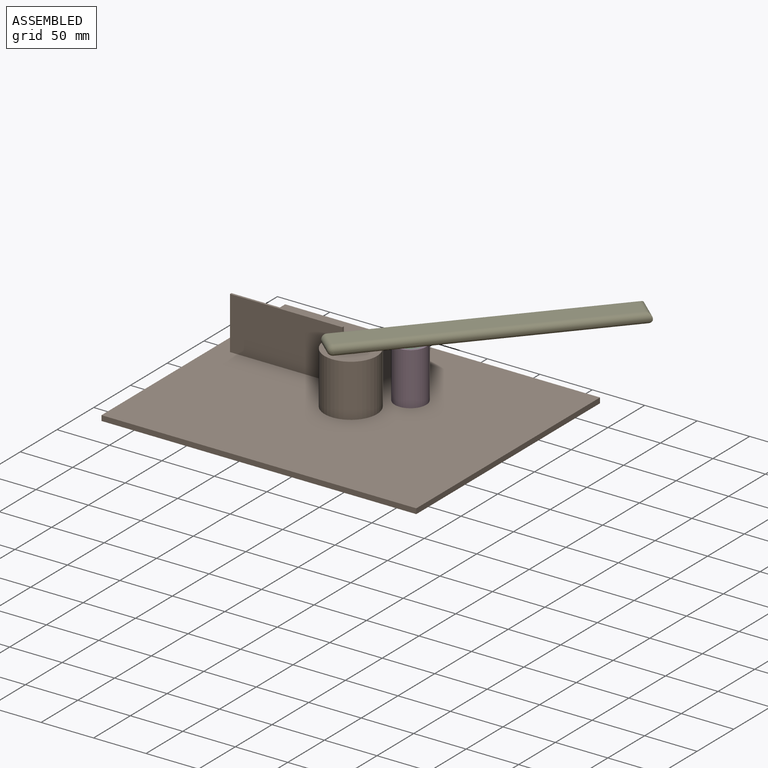
[diagram: assembled view]
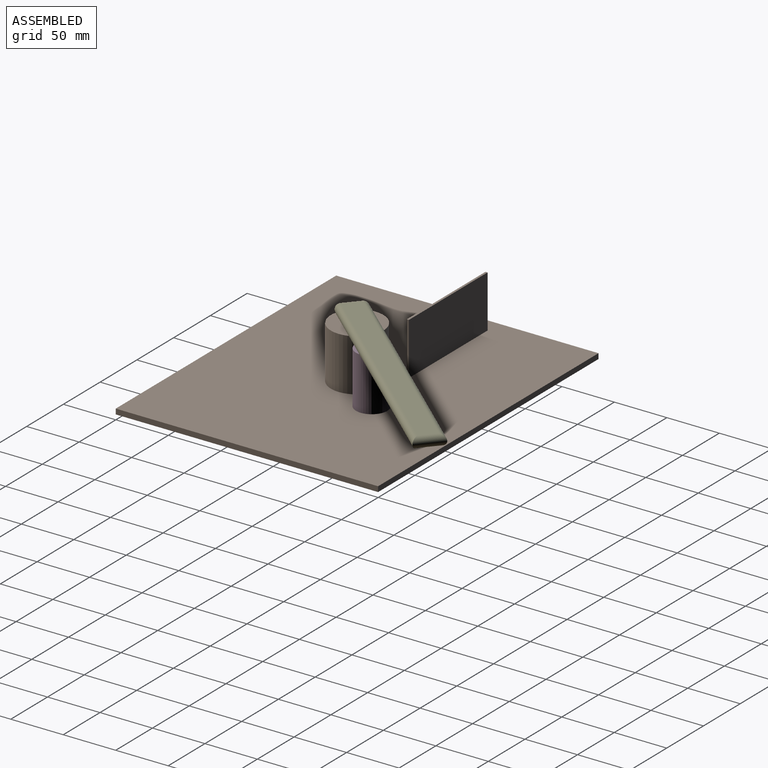
[diagram: assembled view, second angle]
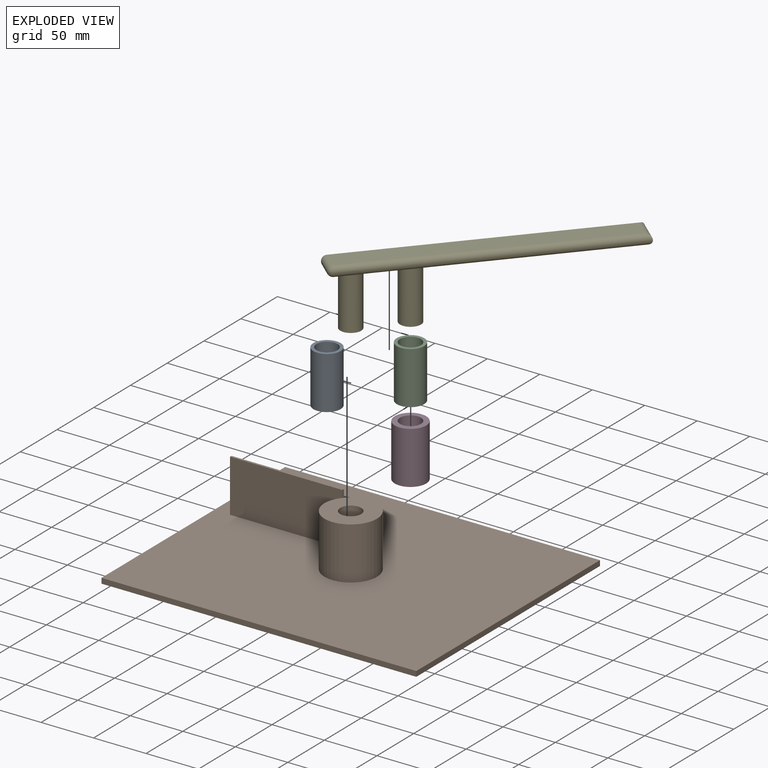
[diagram: exploded view]
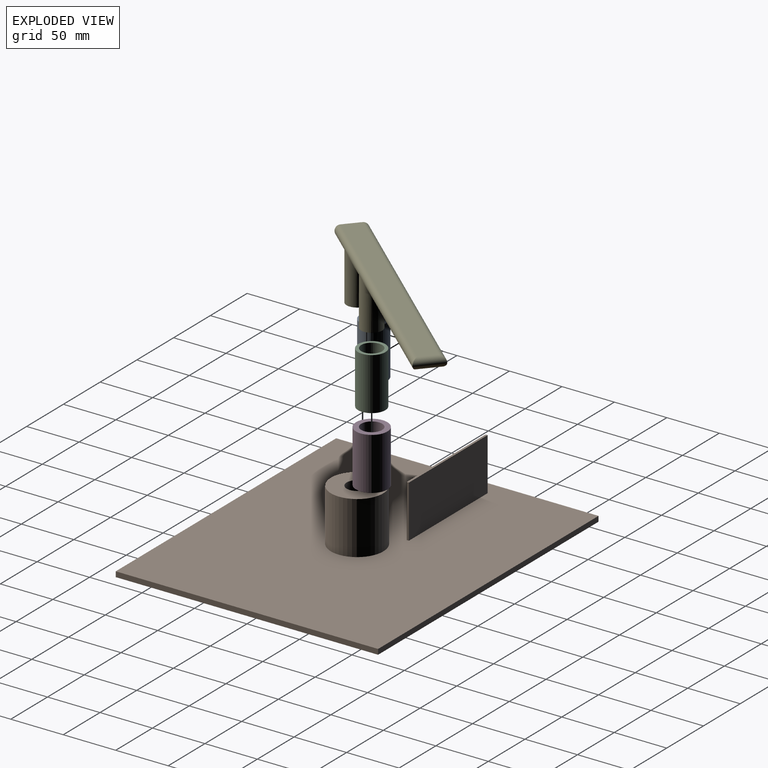
[diagram: exploded view, second angle]
ASSEMBLY  parts=5 mates=3
PART A: 4 faces, bbox 26x26x50 mm
  f0: cylinder r=10mm len=50mm, axis (0,0,-1), area 3141.6mm2, adj f2,f3
  f1: cylinder r=13mm len=50mm, axis (0,0,-1), area 4084.1mm2, adj f2,f3
  f2: plane 26x26mm, normal (0,0,1), area 216.8mm2, adj f0,f1
  f3: plane 26x26mm, normal (0,0,-1), area 216.8mm2, adj f0,f1
PART B: 15 faces, bbox 300x250x55 mm
  f0: plane 300x5mm, normal (0,1,0), area 1500mm2, adj f1,f3,f4,f5
  f1: plane 250x5mm, normal (-1,0,0), area 1250mm2, adj f0,f2,f4,f5
  f2: plane 300x5mm, normal (0,-1,0), area 1500mm2, adj f1,f3,f4,f5
  f3: plane 250x5mm, normal (1,0,0), area 1250mm2, adj f0,f2,f4,f5
  f4: plane 300x250mm, normal (0,0,1), area 72822.2mm2, adj f0,f1,f2,f3,f7,f10,f11,f12
  f5: plane 300x250mm, normal (0,0,-1), area 75000mm2, adj f0,f1,f2,f3
  f6: cylinder r=10mm len=50mm, axis (0,0,-1), area 3141.6mm2, adj f8,f9
  f7: cylinder r=25mm len=50mm, axis (0,0,-1), area 7854mm2, adj f4,f8
  f8: plane 50x50mm, normal (0,0,1), area 1649.3mm2, adj f6,f7
  f9: plane 20x20mm, normal (0,0,1), area 314.2mm2, adj f6
  f10: plane 107.14x50mm, normal (0,-1,0), area 5357.1mm2, adj f4,f11,f13,f14
  f11: plane 50x2mm, normal (1,0,0), area 100mm2, adj f4,f10,f12,f14
  f12: plane 107.14x50mm, normal (0,1,0), area 5357.1mm2, adj f4,f11,f13,f14
  f13: plane 50x2mm, normal (-1,0,0), area 100mm2, adj f4,f10,f12,f14
  f14: plane 107.14x2mm, normal (0,0,1), area 214.3mm2, adj f10,f11,f12,f13
PART C: same geometry as A
PART D: 4 faces, bbox 30x30x50 mm
  f0: cylinder r=10mm len=50mm, axis (0,0,-1), area 3141.6mm2, adj f2,f3
  f1: cylinder r=15mm len=50mm, axis (0,0,-1), area 4712.4mm2, adj f2,f3
  f2: plane 30x30mm, normal (0,0,1), area 392.7mm2, adj f0,f1
  f3: plane 30x30mm, normal (0,0,-1), area 392.7mm2, adj f0,f1
PART E: 22 faces, bbox 261x28.1x60 mm
  f0: plane 8.72x0.1mm, normal (0,-1,0), area 0.5mm2, adj f13,f16
  f1: plane 39.28x18mm, normal (0,0,-1), area 561.6mm2, adj f4,f10,f16,f21
  f2: plane 18x12.21mm, normal (0,0,-1), area 147mm2, adj f10,f15,f16,f21
  f3: plane 8.72x0.1mm, normal (0,1,0), area 0.5mm2, adj f19,f21
  f4: cylinder r=10mm len=50mm, axis (0,0,-1), area 3141.6mm2, adj f1,f5,f9,f12,f19
  f5: plane 20x20mm, normal (0,0,-1), area 314.2mm2, adj f4
  f6: plane 8.72x0.1mm, normal (0,1,0), area 0.5mm2, adj f18,f21
  f7: plane 8.72x0.1mm, normal (0,-1,0), area 0.5mm2, adj f12,f16
  f8: plane 250.97x18mm, normal (0,0,1), area 4517.4mm2, adj f15,f16,f20,f21
  f9: plane 182.04x18mm, normal (0,0,-1), area 3204mm2, adj f4,f16,f20,f21
  f10: cylinder r=10mm len=50mm, axis (0,0,-1), area 3141.6mm2, adj f1,f2,f11,f13,f18
  f11: plane 20x20mm, normal (0,0,-1), area 314.2mm2, adj f10
  f12: bspline ~10.38x5.56mm, area 62.6mm2, adj f4,f7,f16
  f13: bspline ~10.38x5.56mm, area 62.6mm2, adj f0,f10,f16
  f14: sphere r=5mm, area 78.5mm2, adj f15,f16
  f15: cylinder r=5mm len=18mm, axis (0,-1,0), area 282.7mm2, adj f2,f8,f14,f17
  f16: cylinder r=5mm len=255.98mm, axis (1,0,0), area 3855.2mm2, adj f0,f1,f2,f7,f8,f9,f12,f13
  f17: sphere r=5mm, area 78.5mm2, adj f15,f21
  f18: bspline ~10.38x5.56mm, area 62.6mm2, adj f6,f10,f21
  f19: bspline ~10.38x5.56mm, area 62.6mm2, adj f3,f4,f21
  f20: cylinder r=5mm len=28.03mm, axis (0,1,0), area 382.7mm2, adj f8,f9,f16,f21
  f21: cylinder r=5mm len=255.98mm, axis (-1,0,0), area 3855.2mm2, adj f1,f2,f3,f6,f8,f9,f17,f18
PLACE A at identity
PLACE B at identity fixed
PLACE C rot(axis=(0,0,1),115.7deg) t=(31.67,36.07,5)mm
PLACE D rot(axis=(0,0,1),25.7deg) t=(-11.58,15.27,5)mm
PLACE E rot(axis=(0,0,1),48.7deg) t=(-123.02,-140.12,0)mm
MATE revolute E.f4 <-> C.f1  axis (0,0,-1) through (31.67,36.07,5)mm
MATE revolute B.f6 <-> E.f10  axis (0,0,1) through (0,0,5)mm
MATE revolute C.f0 <-> D.f0  axis (0,0,-1) through (31.67,36.07,5)mm
